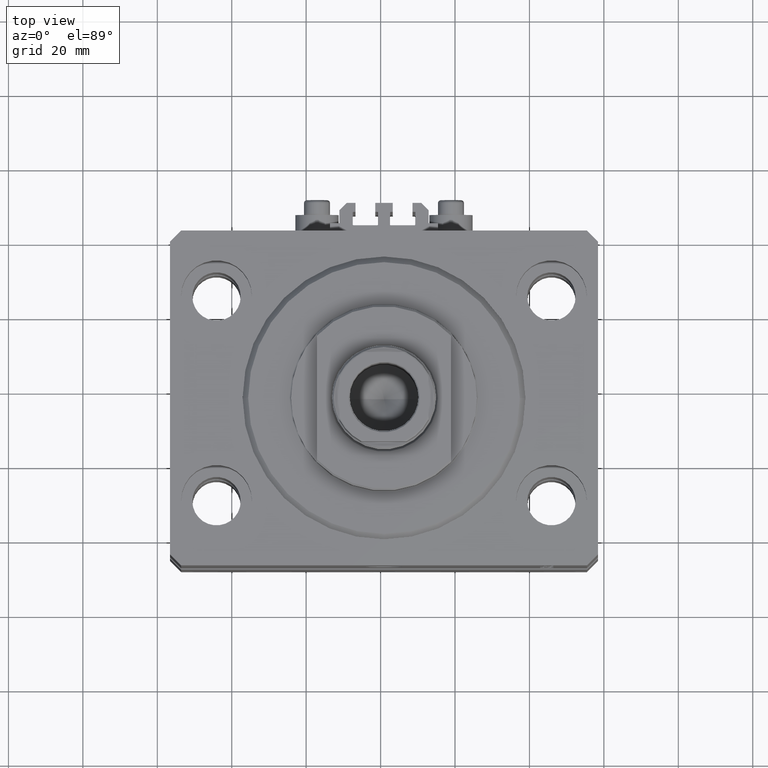
[diagram: clean part render]
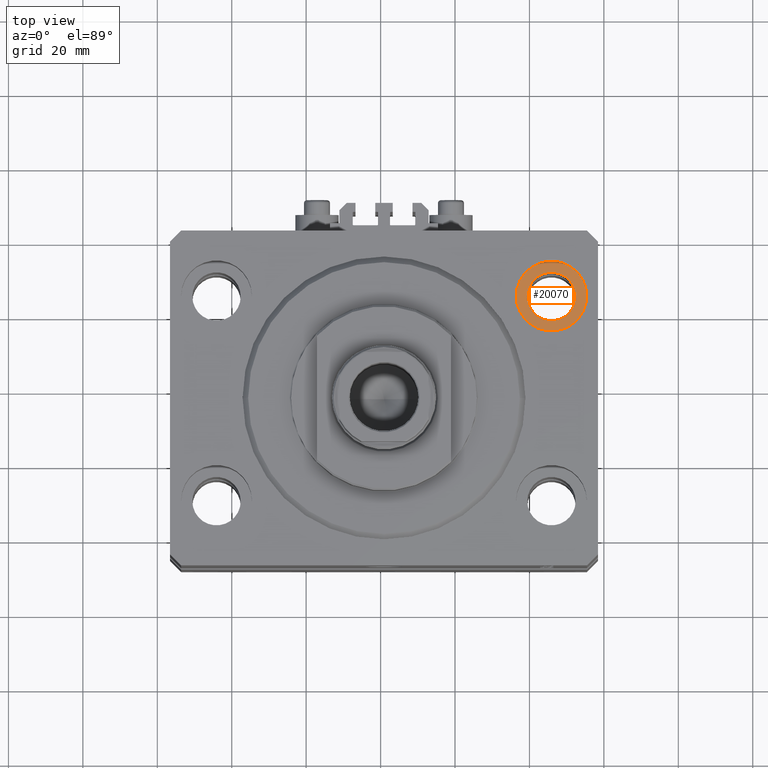
[diagram: same view with one face highlighted and labeled with its STEP entity id]
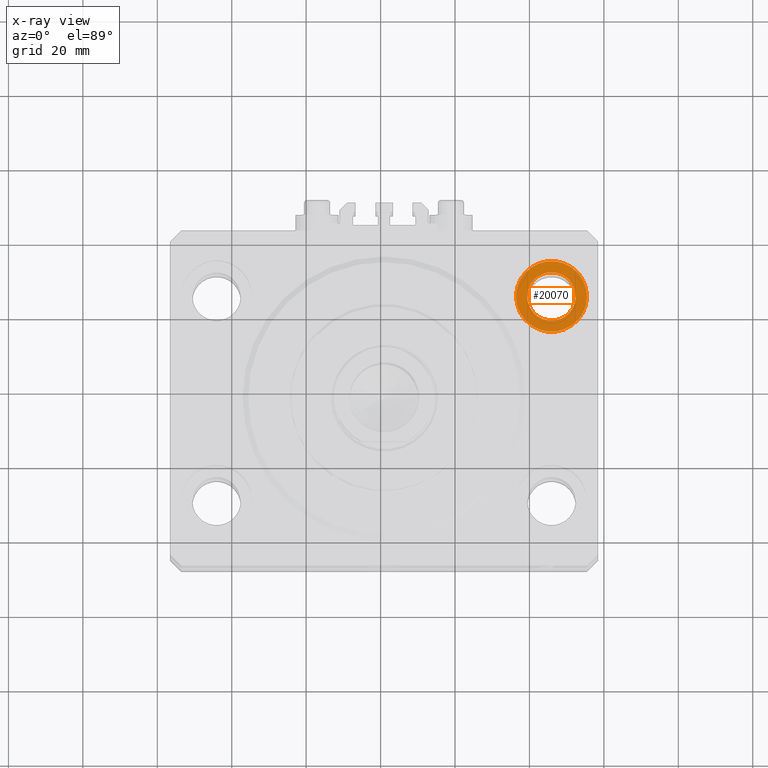
[diagram: x-ray of the same camera — body ghosted, the highlighted face saturated]
A machine part, top view. The second image highlights one B-rep face of the part: STEP entity #20070.
The next image is the same camera in x-ray: the body ghosted, the highlighted face saturated — about 0% of this face is hidden behind the body in this view.
In plain terms, the highlighted planar face has unit normal (0, 0, 1).
Its self-contained STEP definition (entity closure, byte-faithful):
#1693 = AXIS2_PLACEMENT_3D ( 'NONE', #31020, #13065, #28051 ) ;
#4824 = AXIS2_PLACEMENT_3D ( 'NONE', #33754, #18305, #33280 ) ;
#5585 = EDGE_CURVE ( 'NONE', #17569, #36769, #33855, .T. ) ;
#6328 = EDGE_CURVE ( 'NONE', #13363, #30960, #48067, .T. ) ;
#8266 = ORIENTED_EDGE ( 'NONE', *, *, #40490, .T. ) ;
#10204 = EDGE_CURVE ( 'NONE', #36769, #17569, #30856, .T. ) ;
#10881 = EDGE_LOOP ( 'NONE', ( #44675, #10946 ) ) ;
#10946 = ORIENTED_EDGE ( 'NONE', *, *, #5585, .F. ) ;
#13065 = DIRECTION ( 'NONE',  ( 0.000000000000000000, 0.000000000000000000, 1.000000000000000000 ) ) ;
#13363 = VERTEX_POINT ( 'NONE', #45198 ) ;
#17541 = AXIS2_PLACEMENT_3D ( 'NONE', #45327, #27127, #34742 ) ;
#17545 = DIRECTION ( 'NONE',  ( 0.000000000000000000, 0.000000000000000000, 1.000000000000000000 ) ) ;
#17569 = VERTEX_POINT ( 'NONE', #28977 ) ;
#18305 = DIRECTION ( 'NONE',  ( 0.000000000000000000, 0.000000000000000000, 1.000000000000000000 ) ) ;
#19428 = AXIS2_PLACEMENT_3D ( 'NONE', #36213, #17545, #48507 ) ;
#20070 = ADVANCED_FACE ( 'NONE', ( #32274, #21473 ), #47287, .T. ) ;
#21473 = FACE_OUTER_BOUND ( 'NONE', #46388, .T. ) ;
#22693 = CARTESIAN_POINT ( 'NONE',  ( 51.50000000000000000, 27.50000000000001776, -13.00000000000000000 ) ) ;
#23982 = ORIENTED_EDGE ( 'NONE', *, *, #6328, .T. ) ;
#27127 = DIRECTION ( 'NONE',  ( 0.000000000000000000, 0.000000000000000000, 1.000000000000000000 ) ) ;
#28051 = DIRECTION ( 'NONE',  ( 1.000000000000000000, 0.000000000000000000, 0.000000000000000000 ) ) ;
#28977 = CARTESIAN_POINT ( 'NONE',  ( 38.50000000000000000, 27.50000000000001776, -13.00000000000000000 ) ) ;
#30856 = CIRCLE ( 'NONE', #17541, 6.499999999999999112 ) ;
#30960 = VERTEX_POINT ( 'NONE', #35222 ) ;
#31020 = CARTESIAN_POINT ( 'NONE',  ( 45.00000000000000000, 27.50000000000001776, -13.00000000000000000 ) ) ;
#32274 = FACE_BOUND ( 'NONE', #10881, .T. ) ;
#33280 = DIRECTION ( 'NONE',  ( 1.000000000000000000, 0.000000000000000000, 0.000000000000000000 ) ) ;
#33754 = CARTESIAN_POINT ( 'NONE',  ( 45.00000000000000000, 27.50000000000001776, -13.00000000000000000 ) ) ;
#33855 = CIRCLE ( 'NONE', #41723, 6.499999999999999112 ) ;
#34742 = DIRECTION ( 'NONE',  ( 1.000000000000000000, 0.000000000000000000, 0.000000000000000000 ) ) ;
#35222 = CARTESIAN_POINT ( 'NONE',  ( 54.50000000000000000, 27.50000000000001776, -13.00000000000000000 ) ) ;
#36213 = CARTESIAN_POINT ( 'NONE',  ( 45.00000000000000000, 27.50000000000001776, -13.00000000000000000 ) ) ;
#36769 = VERTEX_POINT ( 'NONE', #22693 ) ;
#37207 = CARTESIAN_POINT ( 'NONE',  ( 45.00000000000000000, 27.50000000000001776, -13.00000000000000000 ) ) ;
#37445 = DIRECTION ( 'NONE',  ( 1.000000000000000000, 0.000000000000000000, 0.000000000000000000 ) ) ;
#37840 = CIRCLE ( 'NONE', #1693, 9.500000000000001776 ) ;
#40490 = EDGE_CURVE ( 'NONE', #30960, #13363, #37840, .T. ) ;
#41123 = DIRECTION ( 'NONE',  ( 0.000000000000000000, 0.000000000000000000, 1.000000000000000000 ) ) ;
#41723 = AXIS2_PLACEMENT_3D ( 'NONE', #37207, #41123, #37445 ) ;
#44675 = ORIENTED_EDGE ( 'NONE', *, *, #10204, .F. ) ;
#45198 = CARTESIAN_POINT ( 'NONE',  ( 35.50000000000000000, 27.50000000000001776, -13.00000000000000000 ) ) ;
#45327 = CARTESIAN_POINT ( 'NONE',  ( 45.00000000000000000, 27.50000000000001776, -13.00000000000000000 ) ) ;
#46388 = EDGE_LOOP ( 'NONE', ( #8266, #23982 ) ) ;
#47287 = PLANE ( 'NONE',  #19428 ) ;
#48067 = CIRCLE ( 'NONE', #4824, 9.500000000000001776 ) ;
#48507 = DIRECTION ( 'NONE',  ( 1.000000000000000000, 0.000000000000000000, -0.000000000000000000 ) ) ;